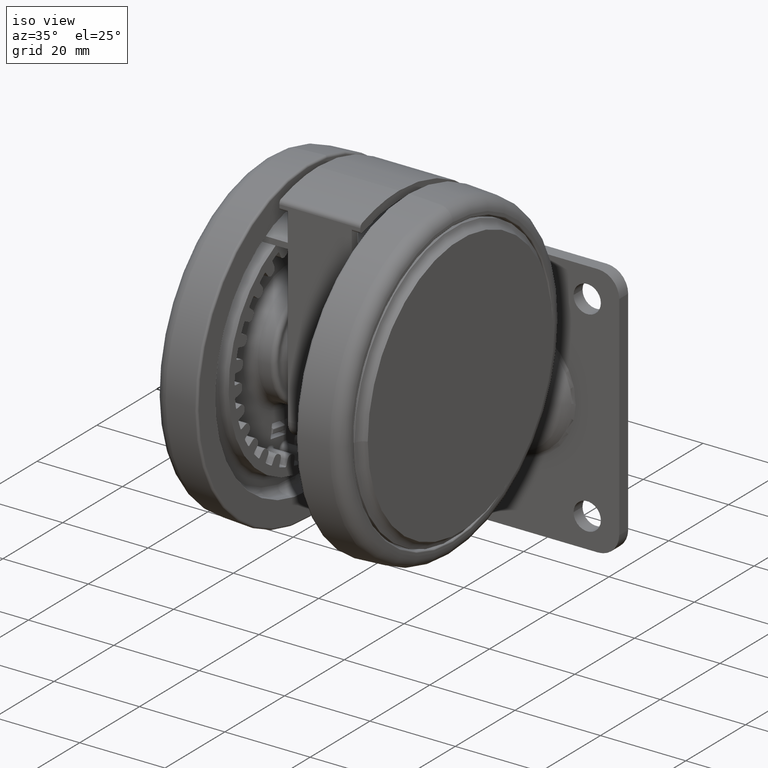
[diagram: clean part render]
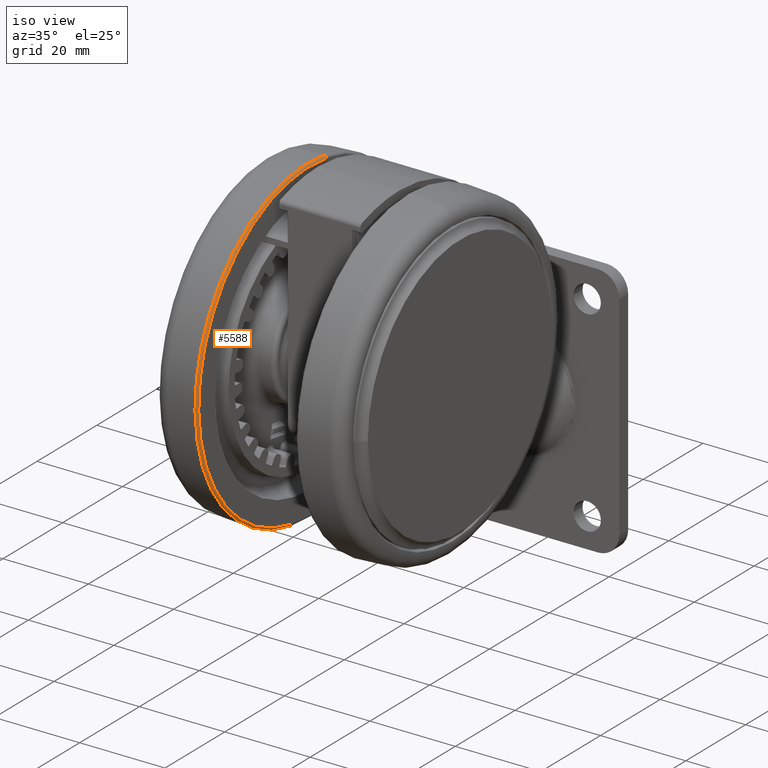
[diagram: same view with one face highlighted and labeled with its STEP entity id]
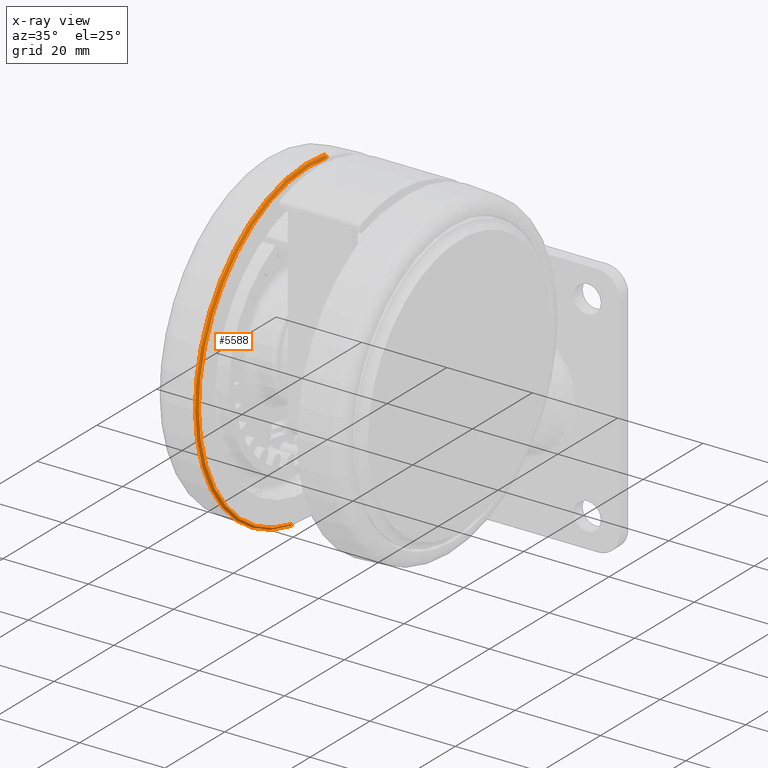
[diagram: x-ray of the same camera — body ghosted, the highlighted face saturated]
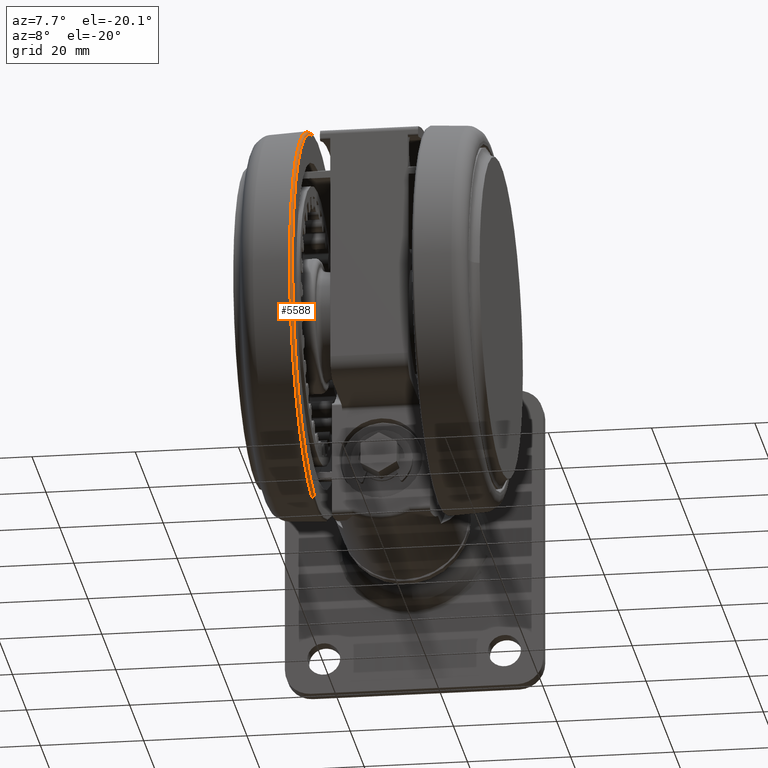
[diagram: same view with one face highlighted and labeled with its STEP entity id]
A machine part, iso view. The second image highlights one B-rep face of the part: STEP entity #5588.
The next image is the same camera in x-ray: the body ghosted, the highlighted face saturated — about 0% of this face is hidden behind the body in this view.
A second angle (auxiliary view) of the same face is appended — the face is thin or edge-on in the first view.
In plain terms, the highlighted toroidal blend (fillet) surface has major radius 37.0007 mm and minor (blend) radius 0.5 mm.
Its self-contained STEP definition (entity closure, byte-faithful):
#1365 = CARTESIAN_POINT ( 'NONE',  ( -5.829805591454992000, -36.53852863005658200, -35.39999999999987800 ) ) ;
#2286 = CARTESIAN_POINT ( 'NONE',  ( -5.908477324274303800, -37.03160671249003100, -35.92616797812134200 ) ) ;
#3314 = CARTESIAN_POINT ( 'NONE',  ( 3.295974604355933500E-014, -6.938893903907228400E-015, -35.89999999999987800 ) ) ;
#5588 = ADVANCED_FACE ( 'NONE', ( #37769 ), #16446, .T. ) ;
#5997 = AXIS2_PLACEMENT_3D ( 'NONE', #13589, #45359, #18170 ) ;
#6860 = ORIENTED_EDGE ( 'NONE', *, *, #17290, .F. ) ;
#7361 = AXIS2_PLACEMENT_3D ( 'NONE', #3314, #53190, #35151 ) ;
#9564 = CARTESIAN_POINT ( 'NONE',  ( 3.295974604355933500E-014, -6.938893903907228400E-015, -35.39999999999987100 ) ) ;
#13589 = CARTESIAN_POINT ( 'NONE',  ( 3.295974604355933500E-014, -6.938893903907228400E-015, -35.92616797812134200 ) ) ;
#13785 = CIRCLE ( 'NONE', #5997, 37.50000000000000000 ) ;
#14131 = DIRECTION ( 'NONE',  ( -0.1575593953139822200, -0.9875095123330672700, 0.0000000000000000000 ) ) ;
#15890 = VERTEX_POINT ( 'NONE', #1365 ) ;
#16446 = TOROIDAL_SURFACE ( 'NONE', #7361, 37.00068523262270800, 0.5000000000000036600 ) ;
#17290 = EDGE_CURVE ( 'NONE', #35193, #57531, #13785, .T. ) ;
#18170 = DIRECTION ( 'NONE',  ( -0.1575593953139822200, -0.9875095123330672700, 0.0000000000000000000 ) ) ;
#18573 = CARTESIAN_POINT ( 'NONE',  ( 5.829805591455054200, 36.53852863005656800, -35.39999999999987800 ) ) ;
#18734 = CIRCLE ( 'NONE', #42106, 0.5000000000000044400 ) ;
#18946 = EDGE_CURVE ( 'NONE', #33356, #15890, #23686, .T. ) ;
#20336 = CARTESIAN_POINT ( 'NONE',  ( 5.829805591455054200, 36.53852863005656800, -35.89999999999987800 ) ) ;
#21811 = EDGE_CURVE ( 'NONE', #15890, #57531, #49621, .T. ) ;
#23686 = CIRCLE ( 'NONE', #46832, 37.00068523262270800 ) ;
#24866 = CARTESIAN_POINT ( 'NONE',  ( -5.829805591454992000, -36.53852863005658200, -35.89999999999987800 ) ) ;
#24905 = DIRECTION ( 'NONE',  ( -0.1575593953139813900, -0.9875095123330675000, 0.0000000000000000000 ) ) ;
#25365 = CARTESIAN_POINT ( 'NONE',  ( 5.908477324274366900, 37.03160671249001700, -35.92616797812134200 ) ) ;
#29438 = DIRECTION ( 'NONE',  ( 0.1575593953139813900, 0.9875095123330675000, 0.0000000000000000000 ) ) ;
#33192 = ORIENTED_EDGE ( 'NONE', *, *, #18946, .T. ) ;
#33356 = VERTEX_POINT ( 'NONE', #18573 ) ;
#35151 = DIRECTION ( 'NONE',  ( -0.1575593953139821900, -0.9875095123330671600, 0.0000000000000000000 ) ) ;
#35193 = VERTEX_POINT ( 'NONE', #25365 ) ;
#36024 = ORIENTED_EDGE ( 'NONE', *, *, #43772, .F. ) ;
#37769 = FACE_OUTER_BOUND ( 'NONE', #47795, .T. ) ;
#38286 = ORIENTED_EDGE ( 'NONE', *, *, #21811, .T. ) ;
#41376 = DIRECTION ( 'NONE',  ( 0.0000000000000000000, 0.0000000000000000000, -1.000000000000000000 ) ) ;
#42106 = AXIS2_PLACEMENT_3D ( 'NONE', #20336, #52067, #24905 ) ;
#43772 = EDGE_CURVE ( 'NONE', #33356, #35193, #18734, .T. ) ;
#45359 = DIRECTION ( 'NONE',  ( 0.0000000000000000000, 0.0000000000000000000, -1.000000000000000000 ) ) ;
#46832 = AXIS2_PLACEMENT_3D ( 'NONE', #9564, #41376, #14131 ) ;
#47795 = EDGE_LOOP ( 'NONE', ( #36024, #33192, #38286, #6860 ) ) ;
#49621 = CIRCLE ( 'NONE', #55410, 0.5000000000000044400 ) ;
#52067 = DIRECTION ( 'NONE',  ( -0.9875095123330673900, 0.1575593953139821100, 0.0000000000000000000 ) ) ;
#53190 = DIRECTION ( 'NONE',  ( 0.0000000000000000000, 0.0000000000000000000, -1.000000000000000000 ) ) ;
#55410 = AXIS2_PLACEMENT_3D ( 'NONE', #24866, #56630, #29438 ) ;
#56630 = DIRECTION ( 'NONE',  ( 0.9875095123330673900, -0.1575593953139822200, 0.0000000000000000000 ) ) ;
#57531 = VERTEX_POINT ( 'NONE', #2286 ) ;